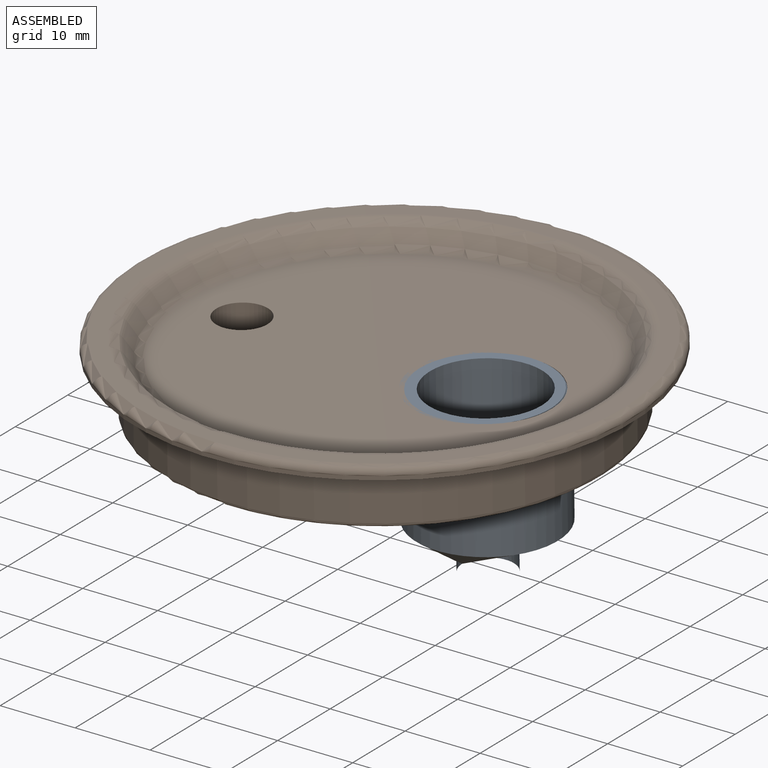
[diagram: assembled view]
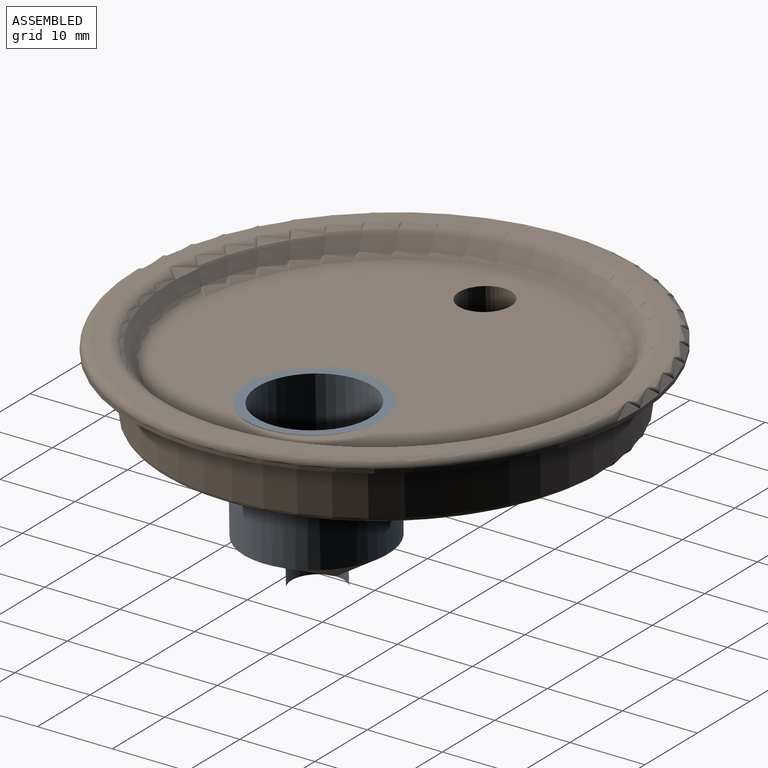
[diagram: assembled view, second angle]
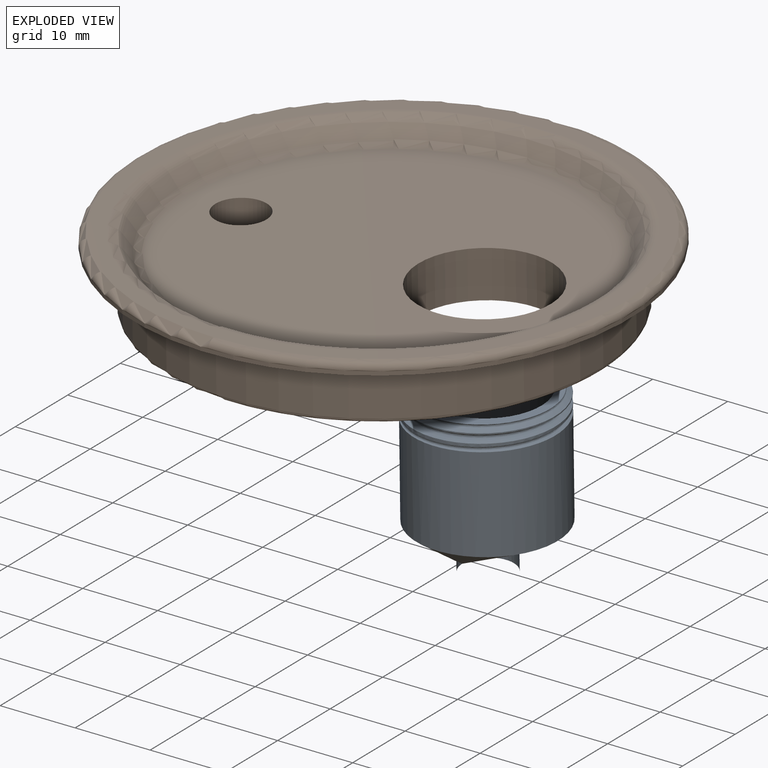
[diagram: exploded view]
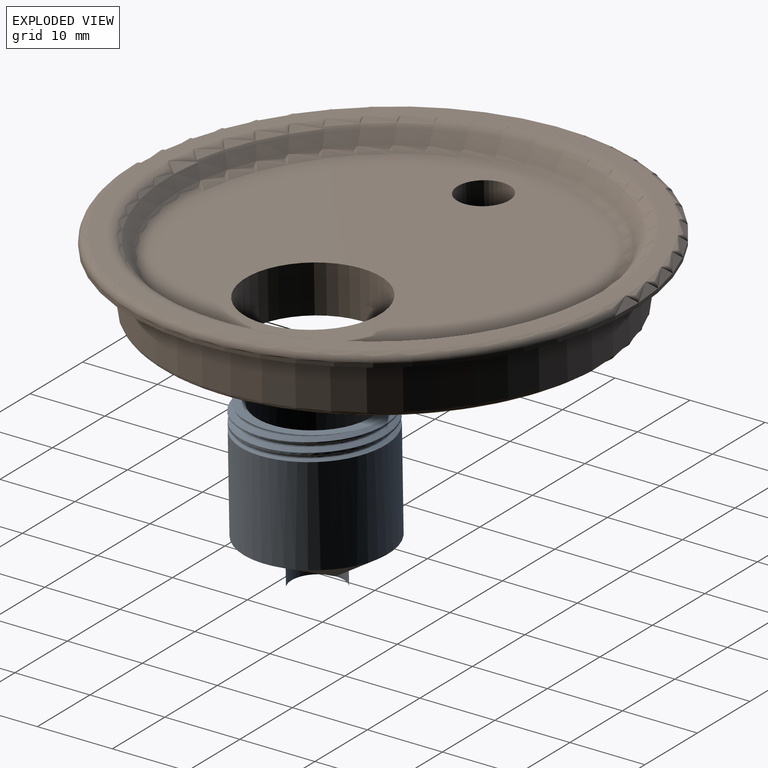
[diagram: exploded view, second angle]
ASSEMBLY  parts=2 mates=2
PART A: 22 faces, bbox 20.5x22.4x23.1 mm
  f0: plane 18.69x18.62mm, normal (0,0,1), area 83.1mm2, adj f6,f8,f18,f19,f20
  f1: cone r=0mm half-angle=59deg, axis (0,0,-1), area 29.9mm2, adj f7,f9,f10,f11,f12,f13,f14
  f2: cone r=0mm half-angle=59deg, axis (0,0,1), area 194.7mm2, adj f8,f9,f10,f11,f12,f13,f14
  f3: torus R=3.17mm, axis (0,0,-1), area 446.5mm2, adj f4,f7
  f4: cylinder r=9.53mm len=19.05mm, axis (0,0,-1), area 791.5mm2, adj f3,f5,f15,f16,f17,f20
  f5: cylinder r=9.53mm len=19.05mm, axis (0,0,-1), area 9.5mm2, adj f4,f6,f19,f20
  f6: cylinder r=9.53mm len=6.67mm, axis (0,0,-1), area 0.6mm2, adj f0,f5,f19
  f7: cylinder r=3.45mm len=6.91mm, axis (0,0,-1), area 137.8mm2, adj f1,f3
  f8: cylinder r=7.54mm len=15.09mm, axis (0,0,1), area 481.6mm2, adj f0,f2
  f9: cylinder r=0.79mm len=3.07mm, axis (0,0,1), area 10.9mm2, adj f1,f2
  f10: cylinder r=0.79mm len=1.59mm, axis (0,0,1), area 0.3mm2, adj f1,f2
  f11: cylinder r=0.79mm len=3.07mm, axis (0,0,1), area 10.9mm2, adj f1,f2
  f12: cylinder r=0.79mm len=2.63mm, axis (0,0,1), area 10.9mm2, adj f1,f2
  f13: cylinder r=0.79mm len=3.07mm, axis (0,0,1), area 10.9mm2, adj f1,f2
  f14: cylinder r=0.79mm len=3.07mm, axis (0,0,1), area 10.8mm2, adj f1,f2
  f15: plane 0.39x0.13mm, normal (0,-1,0), area 0mm2, adj f4,f16,f17,f21
  f16: bspline ~20.08x19.84mm, area 24.9mm2, adj f4,f15,f19,f21
  f17: bspline ~20.08x19.84mm, area 24.9mm2, adj f4,f15,f20,f21
  f18: bspline ~20.41x17.68mm, area 30.7mm2, adj f0,f19,f20,f21
  f19: bspline ~22x19.05mm, area 58.5mm2, adj f0,f5,f6,f16,f18
  f20: bspline ~22x19.05mm, area 84.6mm2, adj f0,f4,f5,f17,f18
  f21: bspline ~18.7x18.45mm, area 20.4mm2, adj f15,f16,f17,f18
PART B: 14 faces, bbox 72.2x72.2x9.3 mm
  f0: torus R=26.15mm, axis (0,0,-1), area 242.7mm2, adj f1,f11
  f1: plane 52.3x52.3mm, normal (0,0,1), area 1860.4mm2, adj f0,f12,f13
  f2: plane 57.4x57.4mm, normal (0,0,-1), area 2299.9mm2, adj f3,f12,f13
  f3: torus R=28.7mm, axis (0,0,-1), area 145.5mm2, adj f2,f4
  f4: cylinder r=29.21mm len=58.42mm, axis (0,0,-1), area 1181.7mm2, adj f3,f5
  f5: torus R=30.01mm, axis (0,0,-1), area 232.9mm2, adj f4,f6
  f6: plane 66.67x66.67mm, normal (0,0,-1), area 662.2mm2, adj f5,f7
  f7: cylinder r=33.34mm len=66.67mm, axis (0,0,-1), area 106.4mm2, adj f6,f8
  f8: torus R=32.32mm, axis (0,0,-1), area 330.6mm2, adj f7,f9
  f9: plane 64.64x64.64mm, normal (0,0,1), area 416.6mm2, adj f8,f10
  f10: torus R=30.2mm, axis (0,0,-1), area 339.8mm2, adj f9,f11
  f11: cone r=27.4mm half-angle=38deg, axis (0,0,1), area 342.1mm2, adj f0,f10
  f12: cylinder r=8.93mm len=17.86mm, axis (0,0,1), area 356.3mm2, adj f1,f2
  f13: cylinder r=3.45mm len=6.91mm, axis (0,0,1), area 137.8mm2, adj f1,f2
PLACE A rot(axis=(1,-0.02,0),1.1deg) t=(5.64,-3.69,6.91)mm
PLACE B rot(axis=(1,-0.02,0),1.1deg) t=(-7.83,-4.18,32.05)mm
MATE planar A.f0 <-> B.f1  axis (0,-0.02,1) through (4.51,-4.59,29.13)mm
MATE cylindrical A.f1 <-> B.f12  axis (0,0.02,-1) through (5.64,-3.97,21.2)mm
